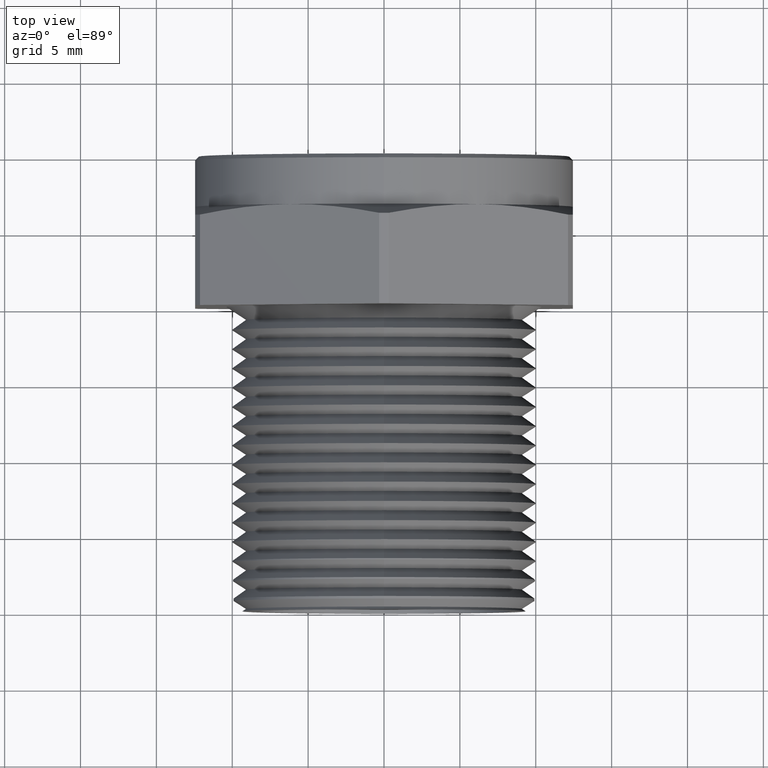
[diagram: clean part render]
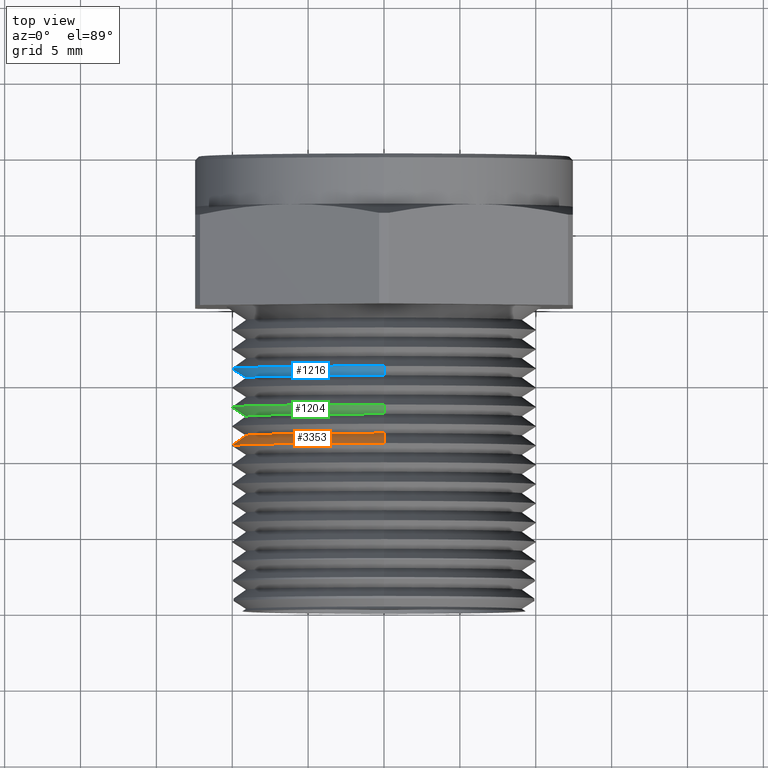
[diagram: same view with three faces highlighted in distinct colors, each labeled with its STEP entity id]
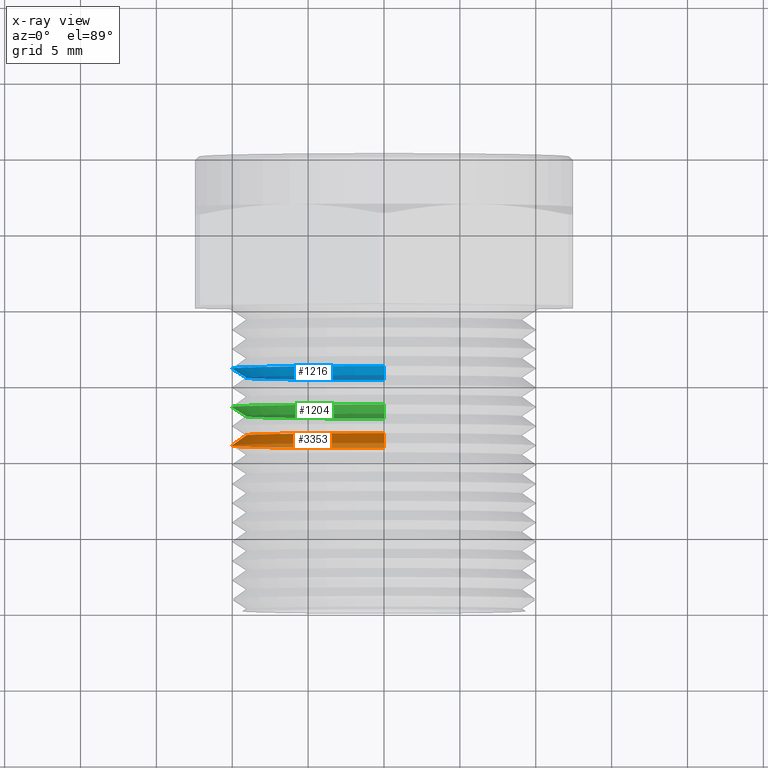
[diagram: x-ray of the same camera — body ghosted, the three highlighted faces saturated]
A machine part, top view with three faces highlighted in distinct colors.
The next image is the same camera in x-ray (body ghosted, the three faces saturated) — at least one of them is partly hidden behind the body in this view.
Their STEP definitions:

[orange] entity #3353 — the highlighted conical surface has half-angle 53.5 deg.
#51 = CARTESIAN_POINT ( 'NONE',  ( 4.834512557059620300E-017, 0.4299180986532964400, 0.3947679086268461900 ) ) ;
#77 = CARTESIAN_POINT ( 'NONE',  ( 4.616113702380717100E-017, 0.4563104676866718800, 0.3591006689245971300 ) ) ;
#78 = CARTESIAN_POINT ( 'NONE',  ( 0.0000000000000000000, 0.4563104676866718800, -0.3591006689245971300 ) ) ;
#161 = CARTESIAN_POINT ( 'NONE',  ( 0.0000000000000000000, 0.4299180986532964400, -0.3947679086268461900 ) ) ;
#483 = DIRECTION ( 'NONE',  ( 0.0000000000000000000, 0.0000000000000000000, -1.000000000000000000 ) ) ;
#484 = DIRECTION ( 'NONE',  ( -0.0000000000000000000, -1.000000000000000000, -0.0000000000000000000 ) ) ;
#485 = CARTESIAN_POINT ( 'NONE',  ( 0.0000000000000000000, 0.4200032405425556700, 0.0000000000000000000 ) ) ;
#486 = AXIS2_PLACEMENT_3D ( 'NONE', #485, #484, #483 ) ;
#487 = CONICAL_SURFACE ( 'NONE', #486, 0.4081670703467500900, 0.9337511498169586100 ) ;
#492 = FACE_OUTER_BOUND ( 'NONE', #3351, .T. ) ;
#500 = DIRECTION ( 'NONE',  ( 0.0000000000000000000, 1.000000000000000000, 0.0000000000000000000 ) ) ;
#501 = CARTESIAN_POINT ( 'NONE',  ( 0.0000000000000000000, 0.4299180986532964400, 0.0000000000000000000 ) ) ;
#502 = AXIS2_PLACEMENT_3D ( 'NONE', #501, #500, #560 ) ;
#503 = CIRCLE ( 'NONE', #502, 0.3947679086268463000 ) ;
#504 = CARTESIAN_POINT ( 'NONE',  ( 0.0000000000000000000, 0.4563104676866718800, 0.0000000000000000000 ) ) ;
#556 = DIRECTION ( 'NONE',  ( 0.0000000000000000000, 0.0000000000000000000, -1.000000000000000000 ) ) ;
#557 = DIRECTION ( 'NONE',  ( -0.0000000000000000000, -1.000000000000000000, -0.0000000000000000000 ) ) ;
#558 = AXIS2_PLACEMENT_3D ( 'NONE', #504, #557, #556 ) ;
#559 = CIRCLE ( 'NONE', #558, 0.3591006689245971300 ) ;
#560 = DIRECTION ( 'NONE',  ( 0.0000000000000000000, 0.0000000000000000000, 1.000000000000000000 ) ) ;
#817 = EDGE_CURVE ( 'NONE', #1643, #1632, #1941, .T. ) ;
#820 = EDGE_CURVE ( 'NONE', #1642, #1696, #1937, .T. ) ;
#1632 = VERTEX_POINT ( 'NONE', #51 ) ;
#1642 = VERTEX_POINT ( 'NONE', #78 ) ;
#1643 = VERTEX_POINT ( 'NONE', #77 ) ;
#1696 = VERTEX_POINT ( 'NONE', #161 ) ;
#1934 = DIRECTION ( 'NONE',  ( 0.0000000000000000000, -0.5948227867513474800, -0.8038568606172127300 ) ) ;
#1935 = VECTOR ( 'NONE', #1934, 39.37007874015748100 ) ;
#1936 = CARTESIAN_POINT ( 'NONE',  ( 0.0000000000000000000, 0.4200032405425556700, -0.4081670703467500900 ) ) ;
#1937 = LINE ( 'NONE', #1936, #1935 ) ;
#1938 = DIRECTION ( 'NONE',  ( 9.844407313275096200E-017, -0.5948227867513474800, 0.8038568606172127300 ) ) ;
#1939 = VECTOR ( 'NONE', #1938, 39.37007874015748100 ) ;
#1940 = CARTESIAN_POINT ( 'NONE',  ( 4.998604962175000500E-017, 0.4200032405425556700, 0.4081670703467500900 ) ) ;
#1941 = LINE ( 'NONE', #1940, #1939 ) ;
#3328 = ORIENTED_EDGE ( 'NONE', *, *, #3377, .T. ) ;
#3333 = ORIENTED_EDGE ( 'NONE', *, *, #817, .F. ) ;
#3351 = EDGE_LOOP ( 'NONE', ( #3333, #3328, #3374, #3375 ) ) ;
#3353 = ADVANCED_FACE ( 'NONE', ( #492 ), #487, .T. ) ;
#3374 = ORIENTED_EDGE ( 'NONE', *, *, #820, .T. ) ;
#3375 = ORIENTED_EDGE ( 'NONE', *, *, #3376, .T. ) ;
#3376 = EDGE_CURVE ( 'NONE', #1696, #1632, #503, .T. ) ;
#3377 = EDGE_CURVE ( 'NONE', #1643, #1642, #559, .T. ) ;

[blue] entity #1216 — the highlighted conical surface has half-angle 56.5 deg.
#12 = CARTESIAN_POINT ( 'NONE',  ( 0.0000000000000000000, 0.6299180986532964000, -0.3947679086268463500 ) ) ;
#13 = DIRECTION ( 'NONE',  ( 1.021215602848915900E-016, 0.5519369853120595900, -0.8338858220671672200 ) ) ;
#14 = VECTOR ( 'NONE', #13, 39.37007874015748100 ) ;
#15 = CARTESIAN_POINT ( 'NONE',  ( 4.397714847701813200E-017, 0.6063104676866718500, -0.3591006689245971300 ) ) ;
#16 = LINE ( 'NONE', #15, #14 ) ;
#17 = CARTESIAN_POINT ( 'NONE',  ( 4.616113702380717100E-017, 0.6063104676866718500, 0.3591006689245971300 ) ) ;
#18 = CARTESIAN_POINT ( 'NONE',  ( 0.0000000000000000000, 0.6063104676866718500, -0.3591006689245971300 ) ) ;
#229 = DIRECTION ( 'NONE',  ( 0.0000000000000000000, 0.5519369853120595900, 0.8338858220671672200 ) ) ;
#230 = VECTOR ( 'NONE', #229, 39.37007874015748100 ) ;
#231 = CARTESIAN_POINT ( 'NONE',  ( 0.0000000000000000000, 0.6063104676866718500, 0.3591006689245971300 ) ) ;
#232 = LINE ( 'NONE', #231, #230 ) ;
#360 = CARTESIAN_POINT ( 'NONE',  ( 4.834512557059620900E-017, 0.6299180986532964000, 0.3947679086268463500 ) ) ;
#551 = DIRECTION ( 'NONE',  ( 0.0000000000000000000, 0.0000000000000000000, -1.000000000000000000 ) ) ;
#552 = DIRECTION ( 'NONE',  ( -0.0000000000000000000, -1.000000000000000000, -0.0000000000000000000 ) ) ;
#553 = CARTESIAN_POINT ( 'NONE',  ( 0.0000000000000000000, 0.6063104676866718500, 0.0000000000000000000 ) ) ;
#554 = AXIS2_PLACEMENT_3D ( 'NONE', #553, #552, #551 ) ;
#555 = CIRCLE ( 'NONE', #554, 0.3591006689245971300 ) ;
#583 = DIRECTION ( 'NONE',  ( 0.0000000000000000000, 0.0000000000000000000, 1.000000000000000000 ) ) ;
#584 = DIRECTION ( 'NONE',  ( 0.0000000000000000000, 1.000000000000000000, 0.0000000000000000000 ) ) ;
#585 = CARTESIAN_POINT ( 'NONE',  ( 0.0000000000000000000, 0.6299180986532964000, 0.0000000000000000000 ) ) ;
#586 = AXIS2_PLACEMENT_3D ( 'NONE', #585, #584, #583 ) ;
#587 = CIRCLE ( 'NONE', #586, 0.3947679086268463500 ) ;
#1216 = ADVANCED_FACE ( 'NONE', ( #2612 ), #2607, .T. ) ;
#1217 = EDGE_LOOP ( 'NONE', ( #1218, #1219, #1220, #1221 ) ) ;
#1218 = ORIENTED_EDGE ( 'NONE', *, *, #1621, .F. ) ;
#1219 = ORIENTED_EDGE ( 'NONE', *, *, #3378, .F. ) ;
#1220 = ORIENTED_EDGE ( 'NONE', *, *, #1724, .T. ) ;
#1221 = ORIENTED_EDGE ( 'NONE', *, *, #3392, .F. ) ;
#1618 = VERTEX_POINT ( 'NONE', #18 ) ;
#1619 = VERTEX_POINT ( 'NONE', #17 ) ;
#1621 = EDGE_CURVE ( 'NONE', #1618, #1622, #16, .T. ) ;
#1622 = VERTEX_POINT ( 'NONE', #12 ) ;
#1724 = EDGE_CURVE ( 'NONE', #1619, #1810, #232, .T. ) ;
#1810 = VERTEX_POINT ( 'NONE', #360 ) ;
#2602 = DIRECTION ( 'NONE',  ( 0.0000000000000000000, 0.0000000000000000000, 1.000000000000000000 ) ) ;
#2603 = DIRECTION ( 'NONE',  ( 0.0000000000000000000, 1.000000000000000000, 0.0000000000000000000 ) ) ;
#2604 = CARTESIAN_POINT ( 'NONE',  ( 0.0000000000000000000, 0.6063104676866718500, 0.0000000000000000000 ) ) ;
#2605 = AXIS2_PLACEMENT_3D ( 'NONE', #2604, #2603, #2602 ) ;
#2607 = CONICAL_SURFACE ( 'NONE', #2605, 0.3591006689245971300, 0.9861110273767945700 ) ;
#2612 = FACE_OUTER_BOUND ( 'NONE', #1217, .T. ) ;
#3378 = EDGE_CURVE ( 'NONE', #1619, #1618, #555, .T. ) ;
#3392 = EDGE_CURVE ( 'NONE', #1622, #1810, #587, .T. ) ;

[green] entity #1204 — the highlighted conical surface has half-angle 56.5 deg.
#181 = CARTESIAN_POINT ( 'NONE',  ( 4.616113702380717100E-017, 0.5063104676866717600, 0.3591006689245971300 ) ) ;
#182 = CARTESIAN_POINT ( 'NONE',  ( 0.0000000000000000000, 0.5063104676866717600, -0.3591006689245971300 ) ) ;
#510 = DIRECTION ( 'NONE',  ( 0.0000000000000000000, 0.0000000000000000000, -1.000000000000000000 ) ) ;
#511 = DIRECTION ( 'NONE',  ( -0.0000000000000000000, -1.000000000000000000, -0.0000000000000000000 ) ) ;
#512 = CARTESIAN_POINT ( 'NONE',  ( 0.0000000000000000000, 0.5063104676866717600, 0.0000000000000000000 ) ) ;
#513 = AXIS2_PLACEMENT_3D ( 'NONE', #512, #511, #510 ) ;
#518 = CIRCLE ( 'NONE', #513, 0.3591006689245971300 ) ;
#546 = DIRECTION ( 'NONE',  ( 0.0000000000000000000, 0.0000000000000000000, 1.000000000000000000 ) ) ;
#547 = DIRECTION ( 'NONE',  ( 0.0000000000000000000, 1.000000000000000000, 0.0000000000000000000 ) ) ;
#548 = CARTESIAN_POINT ( 'NONE',  ( 0.0000000000000000000, 0.5299180986532963100, 0.0000000000000000000 ) ) ;
#549 = AXIS2_PLACEMENT_3D ( 'NONE', #548, #547, #546 ) ;
#550 = CIRCLE ( 'NONE', #549, 0.3947679086268463500 ) ;
#1204 = ADVANCED_FACE ( 'NONE', ( #2563 ), #2562, .T. ) ;
#1205 = EDGE_LOOP ( 'NONE', ( #1206, #1207, #1208, #1209 ) ) ;
#1206 = ORIENTED_EDGE ( 'NONE', *, *, #1591, .F. ) ;
#1207 = ORIENTED_EDGE ( 'NONE', *, *, #3371, .F. ) ;
#1208 = ORIENTED_EDGE ( 'NONE', *, *, #1599, .T. ) ;
#1209 = ORIENTED_EDGE ( 'NONE', *, *, #3382, .F. ) ;
#1591 = EDGE_CURVE ( 'NONE', #1682, #1592, #3250, .T. ) ;
#1592 = VERTEX_POINT ( 'NONE', #3246 ) ;
#1597 = VERTEX_POINT ( 'NONE', #3304 ) ;
#1599 = EDGE_CURVE ( 'NONE', #1683, #1597, #3303, .T. ) ;
#1682 = VERTEX_POINT ( 'NONE', #182 ) ;
#1683 = VERTEX_POINT ( 'NONE', #181 ) ;
#2562 = CONICAL_SURFACE ( 'NONE', #2617, 0.3591006689245971300, 0.9861110273767945700 ) ;
#2563 = FACE_OUTER_BOUND ( 'NONE', #1205, .T. ) ;
#2614 = DIRECTION ( 'NONE',  ( 0.0000000000000000000, 0.0000000000000000000, 1.000000000000000000 ) ) ;
#2615 = DIRECTION ( 'NONE',  ( 0.0000000000000000000, 1.000000000000000000, 0.0000000000000000000 ) ) ;
#2616 = CARTESIAN_POINT ( 'NONE',  ( 0.0000000000000000000, 0.5063104676866717600, 0.0000000000000000000 ) ) ;
#2617 = AXIS2_PLACEMENT_3D ( 'NONE', #2616, #2615, #2614 ) ;
#3246 = CARTESIAN_POINT ( 'NONE',  ( 0.0000000000000000000, 0.5299180986532963100, -0.3947679086268463500 ) ) ;
#3247 = DIRECTION ( 'NONE',  ( 1.021215602848915900E-016, 0.5519369853120595900, -0.8338858220671672200 ) ) ;
#3248 = VECTOR ( 'NONE', #3247, 39.37007874015748100 ) ;
#3249 = CARTESIAN_POINT ( 'NONE',  ( 4.397714847701813200E-017, 0.5063104676866717600, -0.3591006689245971300 ) ) ;
#3250 = LINE ( 'NONE', #3249, #3248 ) ;
#3300 = DIRECTION ( 'NONE',  ( 0.0000000000000000000, 0.5519369853120595900, 0.8338858220671672200 ) ) ;
#3301 = VECTOR ( 'NONE', #3300, 39.37007874015748100 ) ;
#3302 = CARTESIAN_POINT ( 'NONE',  ( 0.0000000000000000000, 0.5063104676866717600, 0.3591006689245971300 ) ) ;
#3303 = LINE ( 'NONE', #3302, #3301 ) ;
#3304 = CARTESIAN_POINT ( 'NONE',  ( 4.834512557059620900E-017, 0.5299180986532963100, 0.3947679086268463500 ) ) ;
#3371 = EDGE_CURVE ( 'NONE', #1683, #1682, #518, .T. ) ;
#3382 = EDGE_CURVE ( 'NONE', #1592, #1597, #550, .T. ) ;